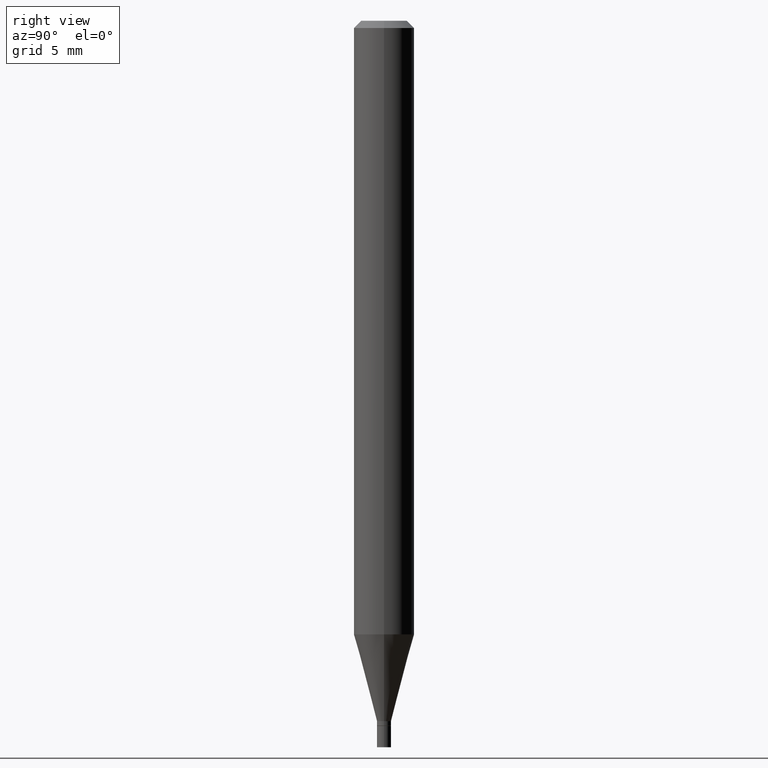
[diagram: clean part render]
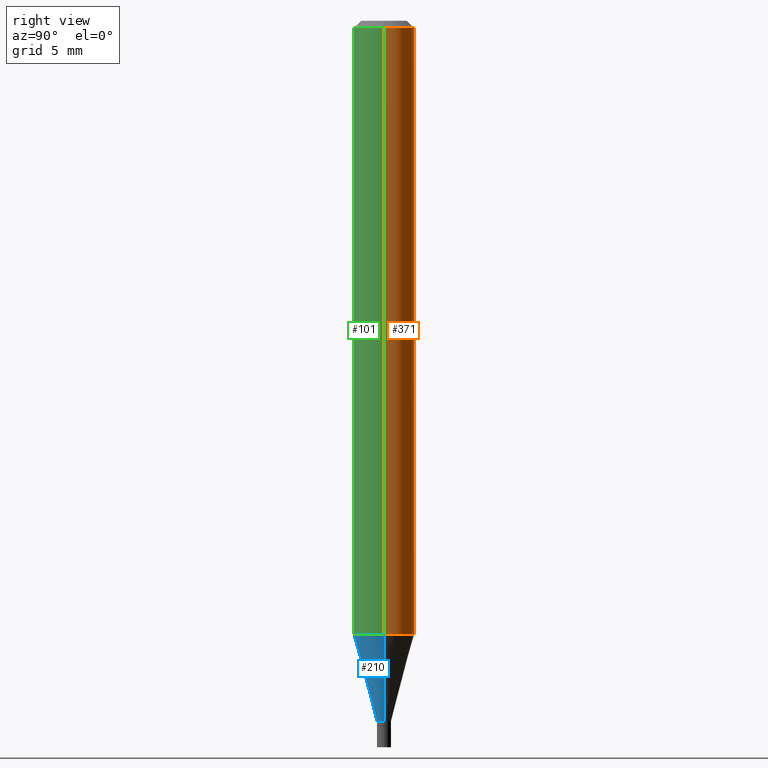
[diagram: same view with three faces highlighted in distinct colors, each labeled with its STEP entity id]
A machine part, right view with three faces highlighted in distinct colors.
Their STEP definitions:

[orange] entity #371 — the highlighted cylindrical surface (edge-blend (fillet) strip) has radius 1.5875 mm, axis along (-0, 0, 1).
#4 = VECTOR ( 'NONE', #201, 39.37007874015748143 ) ;
#21 = DIRECTION ( 'NONE',  ( -2.445468806185136877E-29, 3.491481338843145188E-15, 1.000000000000000000 ) ) ;
#22 = CARTESIAN_POINT ( 'NONE',  ( 3.668203209277705088E-31, -5.237222008264718399E-17, -0.01499999999999999944 ) ) ;
#46 = ORIENTED_EDGE ( 'NONE', *, *, #74, .F. ) ;
#58 = CARTESIAN_POINT ( 'NONE',  ( 3.098070429759336383E-29, -4.423223499955610282E-15, -1.266861561236694023 ) ) ;
#68 = DIRECTION ( 'NONE',  ( -2.445468806185136597E-29, 3.491481338843145583E-15, 1.000000000000000000 ) ) ;
#74 = EDGE_CURVE ( 'NONE', #185, #331, #460, .T. ) ;
#79 = AXIS2_PLACEMENT_3D ( 'NONE', #58, #309, #193 ) ;
#84 = EDGE_CURVE ( 'NONE', #151, #331, #303, .T. ) ;
#105 = CARTESIAN_POINT ( 'NONE',  ( -0.06250000000000000000, -3.979134290105546877E-15, -1.266861561236694023 ) ) ;
#129 = CARTESIAN_POINT ( 'NONE',  ( -0.06250000000000000000, -1.793708650169066262E-15, -0.01499999999999999944 ) ) ;
#151 = VERTEX_POINT ( 'NONE', #105 ) ;
#159 = CARTESIAN_POINT ( 'NONE',  ( 0.06250000000000000000, -4.888073874380388472E-16, -0.01499999999999999944 ) ) ;
#163 = AXIS2_PLACEMENT_3D ( 'NONE', #425, #381, #199 ) ;
#172 = VECTOR ( 'NONE', #21, 39.37007874015748143 ) ;
#185 = VERTEX_POINT ( 'NONE', #159 ) ;
#193 = DIRECTION ( 'NONE',  ( 1.000000000000000000, -6.982962677686262766E-15, 0.000000000000000000 ) ) ;
#199 = DIRECTION ( 'NONE',  ( 1.000000000000000000, -6.982962677686266711E-15, 4.876176775795935793E-29 ) ) ;
#201 = DIRECTION ( 'NONE',  ( -2.445468806185136877E-29, 3.491481338843145188E-15, 1.000000000000000000 ) ) ;
#206 = CARTESIAN_POINT ( 'NONE',  ( 0.06250000000000000000, -4.364351673553916694E-16, 3.047610484872459871E-30 ) ) ;
#228 = EDGE_CURVE ( 'NONE', #396, #151, #414, .T. ) ;
#240 = DIRECTION ( 'NONE',  ( 1.000000000000000000, -6.982962677686266711E-15, 0.000000000000000000 ) ) ;
#276 = FACE_OUTER_BOUND ( 'NONE', #282, .T. ) ;
#282 = EDGE_LOOP ( 'NONE', ( #357, #295, #46, #446 ) ) ;
#295 = ORIENTED_EDGE ( 'NONE', *, *, #84, .T. ) ;
#303 = LINE ( 'NONE', #453, #4 ) ;
#307 = CARTESIAN_POINT ( 'NONE',  ( 0.06250000000000000000, -4.859658667311001952E-15, -1.266861561236694023 ) ) ;
#309 = DIRECTION ( 'NONE',  ( -2.445468806185136597E-29, 3.491481338843145583E-15, 1.000000000000000000 ) ) ;
#314 = CYLINDRICAL_SURFACE ( 'NONE', #163, 0.06250000000000000000 ) ;
#318 = AXIS2_PLACEMENT_3D ( 'NONE', #22, #68, #240 ) ;
#331 = VERTEX_POINT ( 'NONE', #129 ) ;
#332 = EDGE_CURVE ( 'NONE', #396, #185, #462, .T. ) ;
#357 = ORIENTED_EDGE ( 'NONE', *, *, #228, .T. ) ;
#371 = ADVANCED_FACE ( 'NONE', ( #276 ), #314, .T. ) ;
#381 = DIRECTION ( 'NONE',  ( -2.445468806185136597E-29, 3.491481338843145583E-15, 1.000000000000000000 ) ) ;
#396 = VERTEX_POINT ( 'NONE', #307 ) ;
#414 = CIRCLE ( 'NONE', #79, 0.06250000000000000000 ) ;
#425 = CARTESIAN_POINT ( 'NONE',  ( 0.000000000000000000, 0.000000000000000000, 0.000000000000000000 ) ) ;
#446 = ORIENTED_EDGE ( 'NONE', *, *, #332, .F. ) ;
#453 = CARTESIAN_POINT ( 'NONE',  ( -0.06250000000000000000, 4.440892098500626162E-16, -3.074334431409316114E-30 ) ) ;
#460 = CIRCLE ( 'NONE', #318, 0.06250000000000000000 ) ;
#462 = LINE ( 'NONE', #206, #172 ) ;

[blue] entity #210 — the highlighted conical surface has half-angle 15 deg.
#7 = EDGE_CURVE ( 'NONE', #151, #396, #264, .T. ) ;
#9 = ORIENTED_EDGE ( 'NONE', *, *, #403, .F. ) ;
#13 = VERTEX_POINT ( 'NONE', #315 ) ;
#17 = VECTOR ( 'NONE', #73, 39.37007874015748143 ) ;
#18 = EDGE_CURVE ( 'NONE', #13, #294, #223, .T. ) ;
#29 = FACE_OUTER_BOUND ( 'NONE', #402, .T. ) ;
#32 = CARTESIAN_POINT ( 'NONE',  ( 3.536147893743707559E-29, -5.048682015967188692E-15, -1.446000000000000174 ) ) ;
#34 = AXIS2_PLACEMENT_3D ( 'NONE', #32, #302, #230 ) ;
#73 = DIRECTION ( 'NONE',  ( 0.2588190451025211281, 1.565188264969623940E-15, 0.9659258262890682012 ) ) ;
#103 = CARTESIAN_POINT ( 'NONE',  ( -0.01449999999999992441, -4.945653319281974468E-15, -1.446000000000000174 ) ) ;
#105 = CARTESIAN_POINT ( 'NONE',  ( -0.06250000000000000000, -3.979134290105546877E-15, -1.266861561236694023 ) ) ;
#151 = VERTEX_POINT ( 'NONE', #105 ) ;
#166 = CARTESIAN_POINT ( 'NONE',  ( 3.098070429759336383E-29, -4.423223499955610282E-15, -1.266861561236694023 ) ) ;
#176 = ORIENTED_EDGE ( 'NONE', *, *, #338, .T. ) ;
#197 = VECTOR ( 'NONE', #243, 39.37007874015748143 ) ;
#202 = LINE ( 'NONE', #268, #17 ) ;
#210 = ADVANCED_FACE ( 'NONE', ( #29 ), #435, .T. ) ;
#214 = ORIENTED_EDGE ( 'NONE', *, *, #18, .T. ) ;
#223 = CIRCLE ( 'NONE', #244, 0.01449999999999992441 ) ;
#230 = DIRECTION ( 'NONE',  ( 1.000000000000000000, -6.982962677686269077E-15, 0.000000000000000000 ) ) ;
#243 = DIRECTION ( 'NONE',  ( -0.2588190451025211281, 5.211531920934548675E-15, 0.9659258262890682012 ) ) ;
#244 = AXIS2_PLACEMENT_3D ( 'NONE', #429, #308, #270 ) ;
#264 = CIRCLE ( 'NONE', #325, 0.06250000000000000000 ) ;
#266 = LINE ( 'NONE', #103, #197 ) ;
#268 = CARTESIAN_POINT ( 'NONE',  ( 0.01449999999999992441, -5.149934974793639054E-15, -1.446000000000000174 ) ) ;
#270 = DIRECTION ( 'NONE',  ( 1.000000000000000000, -6.982962677686269077E-15, 0.000000000000000000 ) ) ;
#294 = VERTEX_POINT ( 'NONE', #367 ) ;
#302 = DIRECTION ( 'NONE',  ( -2.445468806185136597E-29, 3.491481338843145583E-15, 1.000000000000000000 ) ) ;
#307 = CARTESIAN_POINT ( 'NONE',  ( 0.06250000000000000000, -4.859658667311001952E-15, -1.266861561236694023 ) ) ;
#308 = DIRECTION ( 'NONE',  ( -2.445468806185136597E-29, 3.491481338843145583E-15, 1.000000000000000000 ) ) ;
#315 = CARTESIAN_POINT ( 'NONE',  ( -0.01449999999999992441, -4.462393804693759884E-15, -1.446000000000000174 ) ) ;
#325 = AXIS2_PLACEMENT_3D ( 'NONE', #166, #354, #427 ) ;
#338 = EDGE_CURVE ( 'NONE', #294, #396, #202, .T. ) ;
#354 = DIRECTION ( 'NONE',  ( -2.445468806185136597E-29, 3.491481338843145583E-15, 1.000000000000000000 ) ) ;
#367 = CARTESIAN_POINT ( 'NONE',  ( 0.01449999999999992441, -5.149934974793639054E-15, -1.446000000000000174 ) ) ;
#396 = VERTEX_POINT ( 'NONE', #307 ) ;
#402 = EDGE_LOOP ( 'NONE', ( #9, #214, #176, #412 ) ) ;
#403 = EDGE_CURVE ( 'NONE', #13, #151, #266, .T. ) ;
#412 = ORIENTED_EDGE ( 'NONE', *, *, #7, .F. ) ;
#427 = DIRECTION ( 'NONE',  ( 1.000000000000000000, -6.982962677686262766E-15, 0.000000000000000000 ) ) ;
#429 = CARTESIAN_POINT ( 'NONE',  ( 3.536147893743707559E-29, -5.048682015967188692E-15, -1.446000000000000174 ) ) ;
#435 = CONICAL_SURFACE ( 'NONE', #34, 0.01449999999999992441, 0.2617993877991497964 ) ;

[green] entity #101 — the highlighted cylindrical surface (edge-blend (fillet) strip) has radius 1.5875 mm, axis along (-0, 0, 1).
#4 = VECTOR ( 'NONE', #201, 39.37007874015748143 ) ;
#7 = EDGE_CURVE ( 'NONE', #151, #396, #264, .T. ) ;
#21 = DIRECTION ( 'NONE',  ( -2.445468806185136877E-29, 3.491481338843145188E-15, 1.000000000000000000 ) ) ;
#70 = DIRECTION ( 'NONE',  ( 1.000000000000000000, -6.982962677686266711E-15, 0.000000000000000000 ) ) ;
#84 = EDGE_CURVE ( 'NONE', #151, #331, #303, .T. ) ;
#85 = EDGE_LOOP ( 'NONE', ( #329, #321, #326, #241 ) ) ;
#99 = DIRECTION ( 'NONE',  ( -2.445468806185136597E-29, 3.491481338843145583E-15, 1.000000000000000000 ) ) ;
#101 = ADVANCED_FACE ( 'NONE', ( #459 ), #128, .T. ) ;
#105 = CARTESIAN_POINT ( 'NONE',  ( -0.06250000000000000000, -3.979134290105546877E-15, -1.266861561236694023 ) ) ;
#128 = CYLINDRICAL_SURFACE ( 'NONE', #353, 0.06250000000000000000 ) ;
#129 = CARTESIAN_POINT ( 'NONE',  ( -0.06250000000000000000, -1.793708650169066262E-15, -0.01499999999999999944 ) ) ;
#151 = VERTEX_POINT ( 'NONE', #105 ) ;
#159 = CARTESIAN_POINT ( 'NONE',  ( 0.06250000000000000000, -4.888073874380388472E-16, -0.01499999999999999944 ) ) ;
#166 = CARTESIAN_POINT ( 'NONE',  ( 3.098070429759336383E-29, -4.423223499955610282E-15, -1.266861561236694023 ) ) ;
#172 = VECTOR ( 'NONE', #21, 39.37007874015748143 ) ;
#185 = VERTEX_POINT ( 'NONE', #159 ) ;
#201 = DIRECTION ( 'NONE',  ( -2.445468806185136877E-29, 3.491481338843145188E-15, 1.000000000000000000 ) ) ;
#204 = CARTESIAN_POINT ( 'NONE',  ( 0.000000000000000000, 0.000000000000000000, 0.000000000000000000 ) ) ;
#206 = CARTESIAN_POINT ( 'NONE',  ( 0.06250000000000000000, -4.364351673553916694E-16, 3.047610484872459871E-30 ) ) ;
#208 = DIRECTION ( 'NONE',  ( 1.000000000000000000, -6.982962677686266711E-15, 4.876176775795935793E-29 ) ) ;
#212 = CIRCLE ( 'NONE', #461, 0.06250000000000000000 ) ;
#232 = DIRECTION ( 'NONE',  ( -2.445468806185136597E-29, 3.491481338843145583E-15, 1.000000000000000000 ) ) ;
#241 = ORIENTED_EDGE ( 'NONE', *, *, #374, .F. ) ;
#264 = CIRCLE ( 'NONE', #325, 0.06250000000000000000 ) ;
#303 = LINE ( 'NONE', #453, #4 ) ;
#307 = CARTESIAN_POINT ( 'NONE',  ( 0.06250000000000000000, -4.859658667311001952E-15, -1.266861561236694023 ) ) ;
#321 = ORIENTED_EDGE ( 'NONE', *, *, #7, .T. ) ;
#325 = AXIS2_PLACEMENT_3D ( 'NONE', #166, #354, #427 ) ;
#326 = ORIENTED_EDGE ( 'NONE', *, *, #332, .T. ) ;
#329 = ORIENTED_EDGE ( 'NONE', *, *, #84, .F. ) ;
#331 = VERTEX_POINT ( 'NONE', #129 ) ;
#332 = EDGE_CURVE ( 'NONE', #396, #185, #462, .T. ) ;
#346 = CARTESIAN_POINT ( 'NONE',  ( 3.668203209277705088E-31, -5.237222008264718399E-17, -0.01499999999999999944 ) ) ;
#353 = AXIS2_PLACEMENT_3D ( 'NONE', #204, #232, #208 ) ;
#354 = DIRECTION ( 'NONE',  ( -2.445468806185136597E-29, 3.491481338843145583E-15, 1.000000000000000000 ) ) ;
#374 = EDGE_CURVE ( 'NONE', #331, #185, #212, .T. ) ;
#396 = VERTEX_POINT ( 'NONE', #307 ) ;
#427 = DIRECTION ( 'NONE',  ( 1.000000000000000000, -6.982962677686262766E-15, 0.000000000000000000 ) ) ;
#453 = CARTESIAN_POINT ( 'NONE',  ( -0.06250000000000000000, 4.440892098500626162E-16, -3.074334431409316114E-30 ) ) ;
#459 = FACE_OUTER_BOUND ( 'NONE', #85, .T. ) ;
#461 = AXIS2_PLACEMENT_3D ( 'NONE', #346, #99, #70 ) ;
#462 = LINE ( 'NONE', #206, #172 ) ;